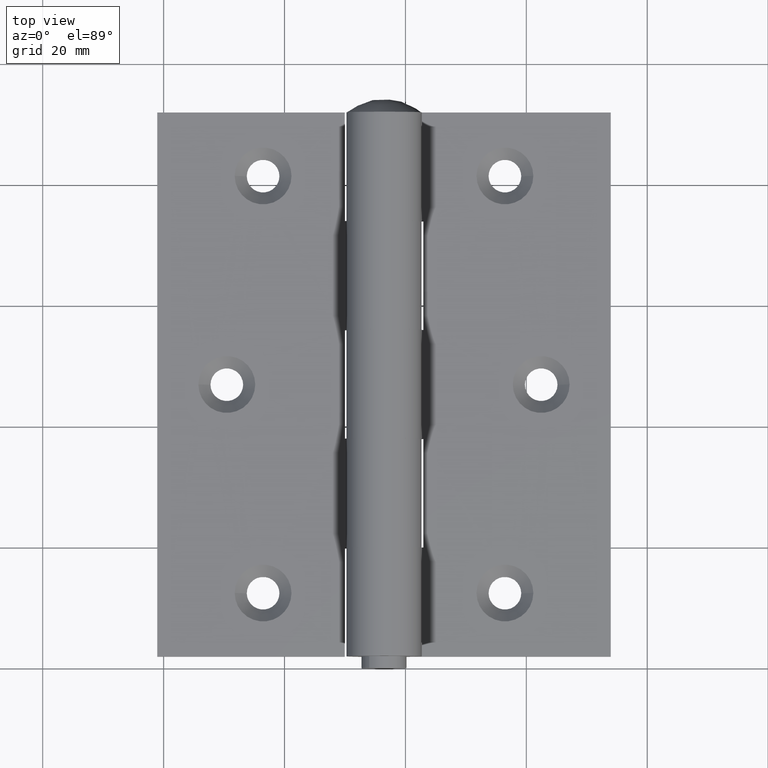
[diagram: clean part render]
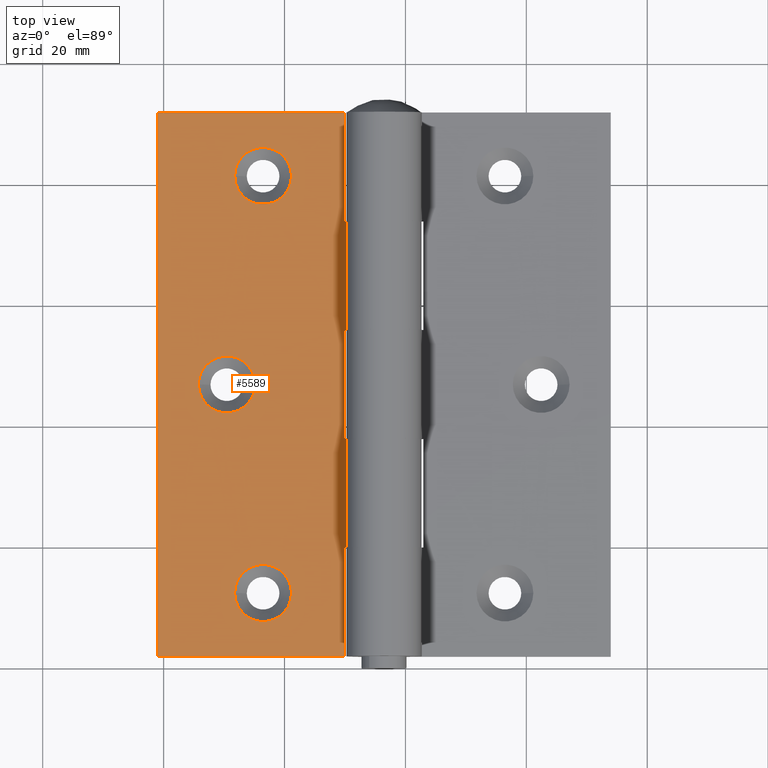
[diagram: same view with one face highlighted and labeled with its STEP entity id]
A machine part, top view. The second image highlights one B-rep face of the part: STEP entity #5589.
In plain terms, the highlighted planar face has unit normal (0, 0, -1).
Its self-contained STEP definition (entity closure, byte-faithful):
#119 = VERTEX_POINT ( 'NONE', #2681 ) ;
#132 = CARTESIAN_POINT ( 'NONE',  ( -6.499999999999991118, -27.00000000000000355, -1.249999999999999334 ) ) ;
#232 = VERTEX_POINT ( 'NONE', #10780 ) ;
#239 = LINE ( 'NONE', #5921, #6695 ) ;
#322 = LINE ( 'NONE', #2176, #10211 ) ;
#470 = LINE ( 'NONE', #12410, #10053 ) ;
#515 = ORIENTED_EDGE ( 'NONE', *, *, #3417, .F. ) ;
#602 = VECTOR ( 'NONE', #2357, 1000.000000000000000 ) ;
#680 = EDGE_CURVE ( 'NONE', #4618, #2257, #2436, .T. ) ;
#776 = VECTOR ( 'NONE', #3615, 1000.000000000000000 ) ;
#788 = CIRCLE ( 'NONE', #4239, 4.699999999999995737 ) ;
#1154 = EDGE_LOOP ( 'NONE', ( #4095 ) ) ;
#1177 = DIRECTION ( 'NONE',  ( 1.000000000000000000, 0.000000000000000000, 1.382193584503309592E-17 ) ) ;
#1251 = DIRECTION ( 'NONE',  ( -0.000000000000000000, -1.000000000000000000, -0.000000000000000000 ) ) ;
#1540 = CARTESIAN_POINT ( 'NONE',  ( -37.50000000000000000, -45.00000000000000000, -1.249999999999999778 ) ) ;
#1623 = VERTEX_POINT ( 'NONE', #8782 ) ;
#1695 = AXIS2_PLACEMENT_3D ( 'NONE', #11114, #4472, #3393 ) ;
#1740 = ORIENTED_EDGE ( 'NONE', *, *, #11020, .T. ) ;
#2176 = CARTESIAN_POINT ( 'NONE',  ( -37.50000000000000000, 26.99999999999999645, -1.249999999999999778 ) ) ;
#2203 = CARTESIAN_POINT ( 'NONE',  ( -6.499999999999999112, 45.00000000000001421, -1.249999999999999334 ) ) ;
#2257 = VERTEX_POINT ( 'NONE', #3072 ) ;
#2327 = ORIENTED_EDGE ( 'NONE', *, *, #5948, .F. ) ;
#2357 = DIRECTION ( 'NONE',  ( -0.000000000000000000, -1.000000000000000000, -0.000000000000000000 ) ) ;
#2411 = ORIENTED_EDGE ( 'NONE', *, *, #3772, .F. ) ;
#2436 = LINE ( 'NONE', #2203, #5587 ) ;
#2494 = CARTESIAN_POINT ( 'NONE',  ( -37.50000000000000000, -45.00000000000000000, -1.249999999999999778 ) ) ;
#2507 = LINE ( 'NONE', #4413, #11375 ) ;
#2681 = CARTESIAN_POINT ( 'NONE',  ( -37.50000000000000000, 45.00000000000000000, -1.249999999999999778 ) ) ;
#2753 = DIRECTION ( 'NONE',  ( 1.000000000000000000, 1.156482317317871478E-16, 1.382193584503309746E-17 ) ) ;
#2757 = ORIENTED_EDGE ( 'NONE', *, *, #9660, .F. ) ;
#2856 = DIRECTION ( 'NONE',  ( 1.382193584503309746E-17, 0.000000000000000000, -1.000000000000000000 ) ) ;
#2965 = DIRECTION ( 'NONE',  ( -1.000000000000000000, 0.000000000000000000, 0.000000000000000000 ) ) ;
#3072 = CARTESIAN_POINT ( 'NONE',  ( -6.499999999999999112, 45.00000000000000000, -1.249999999999999334 ) ) ;
#3294 = CARTESIAN_POINT ( 'NONE',  ( -37.49999999999998579, -27.00000000000002487, -1.249999999999999778 ) ) ;
#3305 = CARTESIAN_POINT ( 'NONE',  ( -37.50000000000000000, 9.000000000000007105, -1.249999999999999778 ) ) ;
#3393 = DIRECTION ( 'NONE',  ( -1.000000000000000000, 0.000000000000000000, -1.382193584503309746E-17 ) ) ;
#3417 = EDGE_CURVE ( 'NONE', #1623, #6690, #470, .T. ) ;
#3494 = CARTESIAN_POINT ( 'NONE',  ( -6.499999999999988454, -45.00000000000000000, -1.249999999999999334 ) ) ;
#3615 = DIRECTION ( 'NONE',  ( 1.000000000000000000, 0.000000000000000000, 1.382193584503309592E-17 ) ) ;
#3638 = CARTESIAN_POINT ( 'NONE',  ( -24.70000000000002061, 34.50000000000000000, -1.249999999999999556 ) ) ;
#3667 = DIRECTION ( 'NONE',  ( -1.000000000000000000, 0.000000000000000000, 0.000000000000000000 ) ) ;
#3772 = EDGE_CURVE ( 'NONE', #6690, #7648, #6914, .T. ) ;
#3859 = CARTESIAN_POINT ( 'NONE',  ( -6.499999999999991118, -9.000000000000003553, -1.249999999999999334 ) ) ;
#3875 = EDGE_LOOP ( 'NONE', ( #7444 ) ) ;
#3890 = CARTESIAN_POINT ( 'NONE',  ( -20.00000000000001066, 34.50000000000000000, -1.249999999999999556 ) ) ;
#4095 = ORIENTED_EDGE ( 'NONE', *, *, #9279, .T. ) ;
#4103 = VERTEX_POINT ( 'NONE', #11365 ) ;
#4172 = CARTESIAN_POINT ( 'NONE',  ( -6.123724356957945147, -27.00000000000001066, -1.249999999999999334 ) ) ;
#4239 = AXIS2_PLACEMENT_3D ( 'NONE', #10466, #8595, #3667 ) ;
#4256 = CARTESIAN_POINT ( 'NONE',  ( -6.499999999999991118, 26.99999999999999645, -1.249999999999999334 ) ) ;
#4346 = LINE ( 'NONE', #5256, #602 ) ;
#4353 = DIRECTION ( 'NONE',  ( -1.000000000000000000, 0.000000000000000000, -1.382193584503309746E-17 ) ) ;
#4413 = CARTESIAN_POINT ( 'NONE',  ( -6.499999999999988454, 45.00000000000000000, -1.249999999999999334 ) ) ;
#4472 = DIRECTION ( 'NONE',  ( 1.382193584503309746E-17, 0.000000000000000000, -1.000000000000000000 ) ) ;
#4581 = VECTOR ( 'NONE', #2753, 1000.000000000000000 ) ;
#4594 = CIRCLE ( 'NONE', #4735, 4.700000000000009948 ) ;
#4618 = VERTEX_POINT ( 'NONE', #4256 ) ;
#4671 = CARTESIAN_POINT ( 'NONE',  ( -37.49999999999999289, -9.000000000000007105, -1.249999999999999778 ) ) ;
#4735 = AXIS2_PLACEMENT_3D ( 'NONE', #3890, #2856, #7695 ) ;
#4776 = ORIENTED_EDGE ( 'NONE', *, *, #10759, .T. ) ;
#4809 = EDGE_CURVE ( 'NONE', #7120, #7120, #788, .T. ) ;
#4875 = DIRECTION ( 'NONE',  ( 1.382193584503309746E-17, 0.000000000000000000, -1.000000000000000000 ) ) ;
#5095 = CARTESIAN_POINT ( 'NONE',  ( -6.499999999999991118, 9.000000000000007105, -1.249999999999999334 ) ) ;
#5103 = EDGE_CURVE ( 'NONE', #8223, #8674, #10054, .T. ) ;
#5217 = DIRECTION ( 'NONE',  ( 1.000000000000000000, 2.312964634635742957E-16, 1.382193584503309746E-17 ) ) ;
#5256 = CARTESIAN_POINT ( 'NONE',  ( -6.123724356957945147, 45.00000000000000000, -1.249999999999999334 ) ) ;
#5343 = EDGE_CURVE ( 'NONE', #4618, #1623, #322, .T. ) ;
#5451 = EDGE_CURVE ( 'NONE', #119, #8223, #9609, .T. ) ;
#5587 = VECTOR ( 'NONE', #9711, 1000.000000000000000 ) ;
#5589 = ADVANCED_FACE ( 'NONE', ( #5849, #6325, #11421, #8856 ), #9122, .F. ) ;
#5641 = LINE ( 'NONE', #8376, #11956 ) ;
#5849 = FACE_BOUND ( 'NONE', #12163, .T. ) ;
#5893 = CARTESIAN_POINT ( 'NONE',  ( -6.123724356957945147, 9.000000000000007105, -1.249999999999999334 ) ) ;
#5921 = CARTESIAN_POINT ( 'NONE',  ( -37.50000000000000000, 45.00000000000000000, -1.249999999999999778 ) ) ;
#5948 = EDGE_CURVE ( 'NONE', #232, #10772, #4346, .T. ) ;
#6169 = CARTESIAN_POINT ( 'NONE',  ( -37.50000000000000000, 45.00000000000000000, -1.249999999999999778 ) ) ;
#6206 = AXIS2_PLACEMENT_3D ( 'NONE', #8597, #4875, #2965 ) ;
#6325 = FACE_BOUND ( 'NONE', #3875, .T. ) ;
#6609 = ORIENTED_EDGE ( 'NONE', *, *, #5103, .T. ) ;
#6673 = DIRECTION ( 'NONE',  ( -0.000000000000000000, -1.000000000000000000, -0.000000000000000000 ) ) ;
#6690 = VERTEX_POINT ( 'NONE', #5893 ) ;
#6695 = VECTOR ( 'NONE', #1177, 1000.000000000000000 ) ;
#6914 = LINE ( 'NONE', #3305, #11850 ) ;
#7120 = VERTEX_POINT ( 'NONE', #11238 ) ;
#7266 = ORIENTED_EDGE ( 'NONE', *, *, #5343, .F. ) ;
#7444 = ORIENTED_EDGE ( 'NONE', *, *, #4809, .T. ) ;
#7618 = VERTEX_POINT ( 'NONE', #132 ) ;
#7648 = VERTEX_POINT ( 'NONE', #5095 ) ;
#7695 = DIRECTION ( 'NONE',  ( -1.000000000000000000, 0.000000000000000000, 0.000000000000000000 ) ) ;
#8223 = VERTEX_POINT ( 'NONE', #2494 ) ;
#8267 = ORIENTED_EDGE ( 'NONE', *, *, #10251, .F. ) ;
#8376 = CARTESIAN_POINT ( 'NONE',  ( -6.500000000000005329, 45.00000000000000711, -1.249999999999999334 ) ) ;
#8438 = ORIENTED_EDGE ( 'NONE', *, *, #8822, .T. ) ;
#8595 = DIRECTION ( 'NONE',  ( 1.382193584503309746E-17, 0.000000000000000000, -1.000000000000000000 ) ) ;
#8597 = CARTESIAN_POINT ( 'NONE',  ( -26.00000000000000711, -3.092522402069983214E-15, -1.249999999999999556 ) ) ;
#8637 = EDGE_CURVE ( 'NONE', #7648, #10219, #2507, .T. ) ;
#8674 = VERTEX_POINT ( 'NONE', #3494 ) ;
#8770 = ORIENTED_EDGE ( 'NONE', *, *, #5451, .T. ) ;
#8782 = CARTESIAN_POINT ( 'NONE',  ( -6.123724356957943371, 26.99999999999999645, -1.249999999999999334 ) ) ;
#8822 = EDGE_CURVE ( 'NONE', #8674, #7618, #5641, .T. ) ;
#8856 = FACE_OUTER_BOUND ( 'NONE', #11415, .T. ) ;
#9122 = PLANE ( 'NONE',  #1695 ) ;
#9279 = EDGE_CURVE ( 'NONE', #12066, #12066, #4594, .T. ) ;
#9313 = VECTOR ( 'NONE', #1251, 1000.000000000000000 ) ;
#9515 = LINE ( 'NONE', #3294, #11340 ) ;
#9609 = LINE ( 'NONE', #6169, #9313 ) ;
#9660 = EDGE_CURVE ( 'NONE', #10219, #232, #12236, .T. ) ;
#9679 = ORIENTED_EDGE ( 'NONE', *, *, #8637, .F. ) ;
#9711 = DIRECTION ( 'NONE',  ( -4.336808689942017243E-16, 1.000000000000000000, -5.994309148456059246E-33 ) ) ;
#10053 = VECTOR ( 'NONE', #6673, 1000.000000000000000 ) ;
#10054 = LINE ( 'NONE', #1540, #776 ) ;
#10211 = VECTOR ( 'NONE', #11623, 1000.000000000000000 ) ;
#10219 = VERTEX_POINT ( 'NONE', #3859 ) ;
#10251 = EDGE_CURVE ( 'NONE', #119, #2257, #239, .T. ) ;
#10259 = CIRCLE ( 'NONE', #6206, 4.699999999999995737 ) ;
#10466 = CARTESIAN_POINT ( 'NONE',  ( -20.00000000000000355, -34.50000000000000000, -1.249999999999999556 ) ) ;
#10759 = EDGE_CURVE ( 'NONE', #7618, #10772, #9515, .T. ) ;
#10772 = VERTEX_POINT ( 'NONE', #4172 ) ;
#10780 = CARTESIAN_POINT ( 'NONE',  ( -6.123724356957945147, -9.000000000000001776, -1.249999999999999334 ) ) ;
#11020 = EDGE_CURVE ( 'NONE', #4103, #4103, #10259, .T. ) ;
#11114 = CARTESIAN_POINT ( 'NONE',  ( -37.50000000000000000, 45.00000000000000000, -1.249999999999999778 ) ) ;
#11238 = CARTESIAN_POINT ( 'NONE',  ( -24.69999999999999929, -34.50000000000000000, -1.249999999999999556 ) ) ;
#11298 = DIRECTION ( 'NONE',  ( -1.927470528863119788E-16, 1.000000000000000000, -2.664137399313805326E-33 ) ) ;
#11340 = VECTOR ( 'NONE', #5217, 1000.000000000000000 ) ;
#11365 = CARTESIAN_POINT ( 'NONE',  ( -30.70000000000000284, -3.092522402069983214E-15, -1.249999999999999556 ) ) ;
#11375 = VECTOR ( 'NONE', #12009, 1000.000000000000000 ) ;
#11415 = EDGE_LOOP ( 'NONE', ( #7266, #11523, #8267, #8770, #6609, #8438, #4776, #2327, #2757, #9679, #2411, #515 ) ) ;
#11421 = FACE_BOUND ( 'NONE', #1154, .T. ) ;
#11523 = ORIENTED_EDGE ( 'NONE', *, *, #680, .T. ) ;
#11623 = DIRECTION ( 'NONE',  ( 1.000000000000000000, -0.000000000000000000, 1.382193584503309746E-17 ) ) ;
#11850 = VECTOR ( 'NONE', #4353, 1000.000000000000000 ) ;
#11956 = VECTOR ( 'NONE', #11298, 1000.000000000000000 ) ;
#12009 = DIRECTION ( 'NONE',  ( -4.818676322157795156E-17, -1.000000000000000000, -6.660343498284507327E-34 ) ) ;
#12066 = VERTEX_POINT ( 'NONE', #3638 ) ;
#12163 = EDGE_LOOP ( 'NONE', ( #1740 ) ) ;
#12236 = LINE ( 'NONE', #4671, #4581 ) ;
#12410 = CARTESIAN_POINT ( 'NONE',  ( -6.123724356957945147, 45.00000000000000000, -1.249999999999999334 ) ) ;